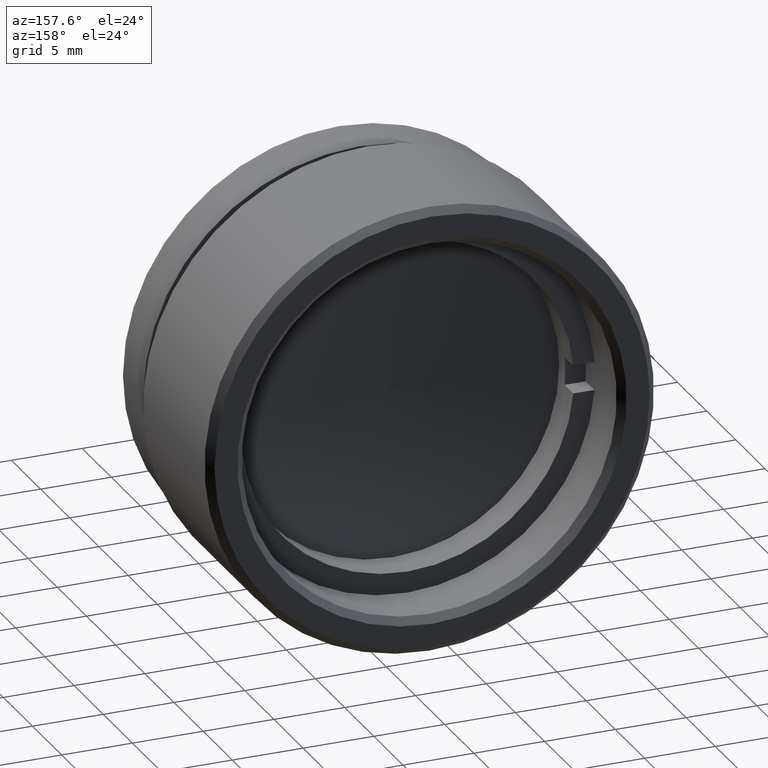
[diagram: clean part render]
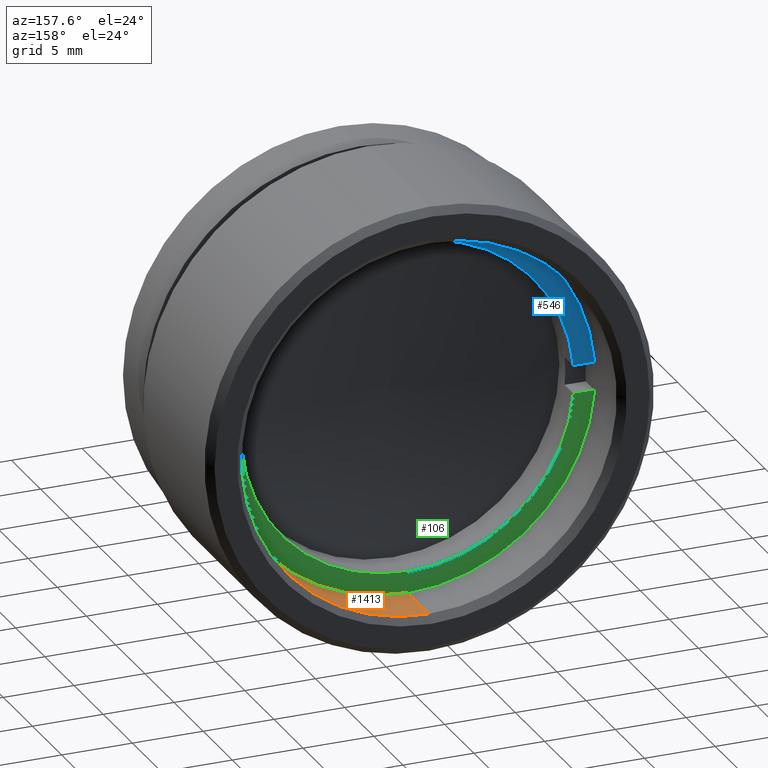
[diagram: same view with three faces highlighted in distinct colors, each labeled with its STEP entity id]
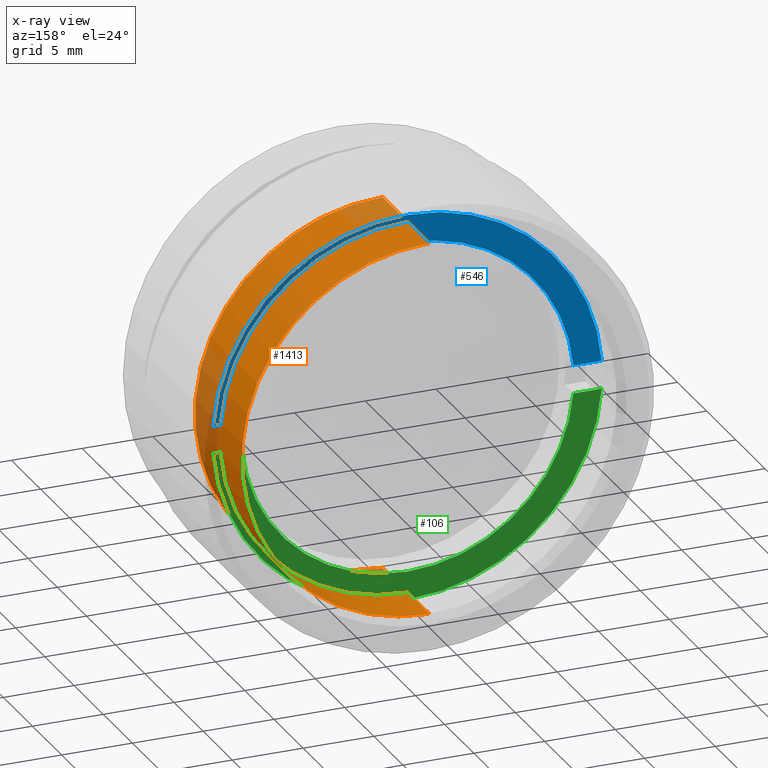
[diagram: x-ray of the same camera — body ghosted, the three highlighted faces saturated]
A machine part, auxiliary view with three faces highlighted in distinct colors.
The next image is the same camera in x-ray (body ghosted, the three faces saturated) — at least one of them is partly hidden behind the body in this view.
Their STEP definitions:

[orange] entity #1413 — the highlighted cylindrical surface (partial cylindrical patch) has radius 13.25 mm, axis along (0, -1, 0).
#100 = ORIENTED_EDGE ( 'NONE', *, *, #1053, .T. ) ;
#103 = EDGE_CURVE ( 'NONE', #1215, #112, #1181, .T. ) ;
#112 = VERTEX_POINT ( 'NONE', #798 ) ;
#142 = ORIENTED_EDGE ( 'NONE', *, *, #103, .F. ) ;
#342 = AXIS2_PLACEMENT_3D ( 'NONE', #1079, #598, #830 ) ;
#344 = DIRECTION ( 'NONE',  ( 0.000000000000000000, 0.000000000000000000, -1.000000000000000000 ) ) ;
#356 = CARTESIAN_POINT ( 'NONE',  ( -62.96855859389910393, 12.15316592187942035, 6.676470295292635804 ) ) ;
#432 = CARTESIAN_POINT ( 'NONE',  ( -62.96855859389910393, 20.15316592187942035, 33.17647029529263847 ) ) ;
#482 = ORIENTED_EDGE ( 'NONE', *, *, #577, .T. ) ;
#509 = CARTESIAN_POINT ( 'NONE',  ( -62.96855859389910393, 4.153165921879420353, 6.676470295292635804 ) ) ;
#542 = CARTESIAN_POINT ( 'NONE',  ( -62.96855859389910393, 20.15316592187942035, 6.676470295292635804 ) ) ;
#577 = EDGE_CURVE ( 'NONE', #1132, #1412, #864, .T. ) ;
#598 = DIRECTION ( 'NONE',  ( 0.000000000000000000, 1.000000000000000000, 0.000000000000000000 ) ) ;
#643 = AXIS2_PLACEMENT_3D ( 'NONE', #1289, #1186, #344 ) ;
#684 = EDGE_LOOP ( 'NONE', ( #142, #100, #482, #1262 ) ) ;
#710 = CYLINDRICAL_SURFACE ( 'NONE', #1448, 13.25000000000000000 ) ;
#723 = VECTOR ( 'NONE', #725, 1000.000000000000000 ) ;
#725 = DIRECTION ( 'NONE',  ( 0.000000000000000000, -1.000000000000000000, 0.000000000000000000 ) ) ;
#730 = DIRECTION ( 'NONE',  ( 0.000000000000000000, -1.000000000000000000, 0.000000000000000000 ) ) ;
#798 = CARTESIAN_POINT ( 'NONE',  ( -62.96855859389910393, 12.15316592187942035, 33.17647029529263847 ) ) ;
#828 = CARTESIAN_POINT ( 'NONE',  ( -62.96855859389910393, 4.153165921879420353, 19.92647029529263492 ) ) ;
#830 = DIRECTION ( 'NONE',  ( 0.000000000000000000, 0.000000000000000000, 1.000000000000000000 ) ) ;
#860 = VECTOR ( 'NONE', #730, 1000.000000000000000 ) ;
#864 = LINE ( 'NONE', #509, #860 ) ;
#909 = CIRCLE ( 'NONE', #342, 13.25000000000000178 ) ;
#935 = EDGE_CURVE ( 'NONE', #1412, #112, #1308, .T. ) ;
#1053 = EDGE_CURVE ( 'NONE', #1215, #1132, #909, .T. ) ;
#1069 = CARTESIAN_POINT ( 'NONE',  ( -62.96855859389910393, 4.153165921879420353, 33.17647029529263847 ) ) ;
#1079 = CARTESIAN_POINT ( 'NONE',  ( -62.96855859389910393, 20.15316592187942035, 19.92647029529263492 ) ) ;
#1132 = VERTEX_POINT ( 'NONE', #542 ) ;
#1181 = LINE ( 'NONE', #1069, #723 ) ;
#1186 = DIRECTION ( 'NONE',  ( 0.000000000000000000, -1.000000000000000000, 0.000000000000000000 ) ) ;
#1191 = DIRECTION ( 'NONE',  ( 0.000000000000000000, -1.000000000000000000, 0.000000000000000000 ) ) ;
#1215 = VERTEX_POINT ( 'NONE', #432 ) ;
#1262 = ORIENTED_EDGE ( 'NONE', *, *, #935, .T. ) ;
#1289 = CARTESIAN_POINT ( 'NONE',  ( -62.96855859389910393, 12.15316592187942035, 19.92647029529263492 ) ) ;
#1308 = CIRCLE ( 'NONE', #643, 13.25000000000000000 ) ;
#1326 = DIRECTION ( 'NONE',  ( 0.000000000000000000, 0.000000000000000000, -1.000000000000000000 ) ) ;
#1398 = FACE_OUTER_BOUND ( 'NONE', #684, .T. ) ;
#1412 = VERTEX_POINT ( 'NONE', #356 ) ;
#1413 = ADVANCED_FACE ( 'NONE', ( #1398 ), #710, .F. ) ;
#1448 = AXIS2_PLACEMENT_3D ( 'NONE', #828, #1191, #1326 ) ;

[blue] entity #546 — the highlighted planar face has unit normal (0, -1, 0).
#21 = CARTESIAN_POINT ( 'NONE',  ( -74.67592806786720416, 16.44655128965290203, 20.92647029529263492 ) ) ;
#95 = VERTEX_POINT ( 'NONE', #21 ) ;
#99 = EDGE_LOOP ( 'NONE', ( #518, #561, #1511, #476, #685, #104 ) ) ;
#104 = ORIENTED_EDGE ( 'NONE', *, *, #1012, .F. ) ;
#124 = CARTESIAN_POINT ( 'NONE',  ( -76.68214674580160306, 16.44655128965290558, 20.92647029529263492 ) ) ;
#197 = VERTEX_POINT ( 'NONE', #1464 ) ;
#212 = CARTESIAN_POINT ( 'NONE',  ( -51.26118911993101079, 16.44655128965290203, 20.92647029529263492 ) ) ;
#252 = EDGE_CURVE ( 'NONE', #1228, #1187, #607, .T. ) ;
#279 = LINE ( 'NONE', #1227, #519 ) ;
#286 = DIRECTION ( 'NONE',  ( 0.000000000000000000, 1.000000000000000000, 0.000000000000000000 ) ) ;
#310 = AXIS2_PLACEMENT_3D ( 'NONE', #776, #337, #591 ) ;
#332 = DIRECTION ( 'NONE',  ( 0.000000000000000000, 0.000000000000000000, 1.000000000000000000 ) ) ;
#337 = DIRECTION ( 'NONE',  ( 0.000000000000000000, 1.000000000000000000, 0.000000000000000000 ) ) ;
#345 = VERTEX_POINT ( 'NONE', #124 ) ;
#408 = DIRECTION ( 'NONE',  ( 0.000000000000000000, 0.000000000000000000, 1.000000000000000000 ) ) ;
#426 = DIRECTION ( 'NONE',  ( 0.000000000000000000, -1.000000000000000000, 0.000000000000000000 ) ) ;
#449 = FACE_OUTER_BOUND ( 'NONE', #99, .T. ) ;
#476 = ORIENTED_EDGE ( 'NONE', *, *, #252, .F. ) ;
#518 = ORIENTED_EDGE ( 'NONE', *, *, #1189, .T. ) ;
#519 = VECTOR ( 'NONE', #1082, 1000.000000000000000 ) ;
#525 = CARTESIAN_POINT ( 'NONE',  ( -89.82109886651370800, 16.44655128965290558, 20.92647029529263492 ) ) ;
#546 = ADVANCED_FACE ( 'NONE', ( #449 ), #1177, .F. ) ;
#561 = ORIENTED_EDGE ( 'NONE', *, *, #862, .T. ) ;
#566 = DIRECTION ( 'NONE',  ( 0.000000000000000000, 1.000000000000000000, 0.000000000000000000 ) ) ;
#573 = CARTESIAN_POINT ( 'NONE',  ( -62.96855859389910393, 16.44655128965290203, 31.67647029529263492 ) ) ;
#591 = DIRECTION ( 'NONE',  ( 0.000000000000000000, 0.000000000000000000, 1.000000000000000000 ) ) ;
#607 = CIRCLE ( 'NONE', #310, 11.75000000000000000 ) ;
#634 = CIRCLE ( 'NONE', #1320, 13.75000000000000178 ) ;
#652 = CARTESIAN_POINT ( 'NONE',  ( -62.96855859389910393, 16.44655128965290203, 19.92647029529263492 ) ) ;
#660 = EDGE_CURVE ( 'NONE', #1187, #197, #279, .T. ) ;
#680 = DIRECTION ( 'NONE',  ( 0.000000000000000000, 0.000000000000000000, -1.000000000000000000 ) ) ;
#685 = ORIENTED_EDGE ( 'NONE', *, *, #822, .F. ) ;
#759 = CIRCLE ( 'NONE', #1370, 13.75000000000000178 ) ;
#776 = CARTESIAN_POINT ( 'NONE',  ( -62.96855859389910393, 16.44655128965290203, 19.92647029529263492 ) ) ;
#782 = VERTEX_POINT ( 'NONE', #1247 ) ;
#822 = EDGE_CURVE ( 'NONE', #95, #1228, #1400, .T. ) ;
#862 = EDGE_CURVE ( 'NONE', #782, #197, #634, .T. ) ;
#936 = AXIS2_PLACEMENT_3D ( 'NONE', #652, #286, #408 ) ;
#1012 = EDGE_CURVE ( 'NONE', #345, #95, #1457, .T. ) ;
#1082 = DIRECTION ( 'NONE',  ( 1.000000000000000000, 0.000000000000000000, 0.000000000000000000 ) ) ;
#1142 = VECTOR ( 'NONE', #1224, 1000.000000000000000 ) ;
#1177 = PLANE ( 'NONE',  #1374 ) ;
#1187 = VERTEX_POINT ( 'NONE', #212 ) ;
#1189 = EDGE_CURVE ( 'NONE', #345, #782, #759, .T. ) ;
#1224 = DIRECTION ( 'NONE',  ( 1.000000000000000000, 0.000000000000000000, 0.000000000000000000 ) ) ;
#1227 = CARTESIAN_POINT ( 'NONE',  ( -89.82109886651370800, 16.44655128965290558, 20.92647029529263492 ) ) ;
#1228 = VERTEX_POINT ( 'NONE', #573 ) ;
#1247 = CARTESIAN_POINT ( 'NONE',  ( -62.96855859389910393, 16.44655128965290203, 33.67647029529263847 ) ) ;
#1320 = AXIS2_PLACEMENT_3D ( 'NONE', #1488, #1481, #1364 ) ;
#1364 = DIRECTION ( 'NONE',  ( 0.000000000000000000, 0.000000000000000000, 1.000000000000000000 ) ) ;
#1369 = CARTESIAN_POINT ( 'NONE',  ( -62.96855859389910393, 16.44655128965290203, 19.92647029529263492 ) ) ;
#1370 = AXIS2_PLACEMENT_3D ( 'NONE', #1369, #566, #332 ) ;
#1374 = AXIS2_PLACEMENT_3D ( 'NONE', #1407, #426, #680 ) ;
#1400 = CIRCLE ( 'NONE', #936, 11.75000000000000000 ) ;
#1407 = CARTESIAN_POINT ( 'NONE',  ( -51.21855859389911103, 16.44655128965290558, 19.92647029529263492 ) ) ;
#1457 = LINE ( 'NONE', #525, #1142 ) ;
#1464 = CARTESIAN_POINT ( 'NONE',  ( -49.25497044199664032, 16.44655128965290558, 20.92647029529263492 ) ) ;
#1481 = DIRECTION ( 'NONE',  ( 0.000000000000000000, 1.000000000000000000, 0.000000000000000000 ) ) ;
#1488 = CARTESIAN_POINT ( 'NONE',  ( -62.96855859389910393, 16.44655128965290203, 19.92647029529263492 ) ) ;
#1511 = ORIENTED_EDGE ( 'NONE', *, *, #660, .F. ) ;

[green] entity #106 — the highlighted planar face has unit normal (0, -1, 0).
#4 = LINE ( 'NONE', #490, #228 ) ;
#5 = CIRCLE ( 'NONE', #198, 13.75000000000000178 ) ;
#8 = DIRECTION ( 'NONE',  ( 0.000000000000000000, 1.000000000000000000, 0.000000000000000000 ) ) ;
#22 = DIRECTION ( 'NONE',  ( -1.000000000000000000, 0.000000000000000000, 0.000000000000000000 ) ) ;
#48 = DIRECTION ( 'NONE',  ( 0.000000000000000000, 1.000000000000000000, 0.000000000000000000 ) ) ;
#83 = ORIENTED_EDGE ( 'NONE', *, *, #803, .F. ) ;
#106 = ADVANCED_FACE ( 'NONE', ( #199 ), #225, .F. ) ;
#123 = AXIS2_PLACEMENT_3D ( 'NONE', #1260, #211, #218 ) ;
#137 = CARTESIAN_POINT ( 'NONE',  ( -62.96855859389910393, 16.44655128965290203, 19.92647029529263492 ) ) ;
#144 = EDGE_CURVE ( 'NONE', #924, #724, #164, .T. ) ;
#164 = CIRCLE ( 'NONE', #123, 13.75000000000000178 ) ;
#187 = DIRECTION ( 'NONE',  ( -1.000000000000000000, 0.000000000000000000, 0.000000000000000000 ) ) ;
#191 = CARTESIAN_POINT ( 'NONE',  ( -51.21855859389911103, 16.44655128965290558, 19.92647029529263492 ) ) ;
#195 = LINE ( 'NONE', #638, #533 ) ;
#198 = AXIS2_PLACEMENT_3D ( 'NONE', #137, #363, #835 ) ;
#199 = FACE_OUTER_BOUND ( 'NONE', #428, .T. ) ;
#211 = DIRECTION ( 'NONE',  ( 0.000000000000000000, 1.000000000000000000, 0.000000000000000000 ) ) ;
#218 = DIRECTION ( 'NONE',  ( 0.000000000000000000, 0.000000000000000000, 1.000000000000000000 ) ) ;
#225 = PLANE ( 'NONE',  #1147 ) ;
#228 = VECTOR ( 'NONE', #22, 1000.000000000000000 ) ;
#276 = VERTEX_POINT ( 'NONE', #343 ) ;
#321 = CARTESIAN_POINT ( 'NONE',  ( -62.96855859389910393, 16.44655128965290203, 6.176470295292635804 ) ) ;
#343 = CARTESIAN_POINT ( 'NONE',  ( -74.67592806786720416, 16.44655128965290203, 18.92647029529263492 ) ) ;
#363 = DIRECTION ( 'NONE',  ( 0.000000000000000000, 1.000000000000000000, 0.000000000000000000 ) ) ;
#395 = DIRECTION ( 'NONE',  ( 0.000000000000000000, 0.000000000000000000, 1.000000000000000000 ) ) ;
#416 = VERTEX_POINT ( 'NONE', #1054 ) ;
#428 = EDGE_LOOP ( 'NONE', ( #1222, #651, #458, #484, #1421, #83 ) ) ;
#458 = ORIENTED_EDGE ( 'NONE', *, *, #1291, .F. ) ;
#475 = DIRECTION ( 'NONE',  ( 0.000000000000000000, 0.000000000000000000, 1.000000000000000000 ) ) ;
#484 = ORIENTED_EDGE ( 'NONE', *, *, #614, .F. ) ;
#490 = CARTESIAN_POINT ( 'NONE',  ( -89.82109886651370800, 16.44655128965290558, 18.92647029529263492 ) ) ;
#533 = VECTOR ( 'NONE', #187, 1000.000000000000000 ) ;
#538 = VERTEX_POINT ( 'NONE', #677 ) ;
#575 = CARTESIAN_POINT ( 'NONE',  ( -49.25497044199664032, 16.44655128965290558, 18.92647029529263492 ) ) ;
#614 = EDGE_CURVE ( 'NONE', #1045, #276, #1408, .T. ) ;
#638 = CARTESIAN_POINT ( 'NONE',  ( -89.82109886651370800, 16.44655128965290558, 18.92647029529263492 ) ) ;
#651 = ORIENTED_EDGE ( 'NONE', *, *, #1301, .T. ) ;
#658 = DIRECTION ( 'NONE',  ( 0.000000000000000000, 0.000000000000000000, -1.000000000000000000 ) ) ;
#677 = CARTESIAN_POINT ( 'NONE',  ( -51.26118911993101079, 16.44655128965290203, 18.92647029529263492 ) ) ;
#724 = VERTEX_POINT ( 'NONE', #321 ) ;
#803 = EDGE_CURVE ( 'NONE', #924, #538, #195, .T. ) ;
#835 = DIRECTION ( 'NONE',  ( 0.000000000000000000, 0.000000000000000000, 1.000000000000000000 ) ) ;
#842 = CIRCLE ( 'NONE', #1297, 11.75000000000000000 ) ;
#899 = DIRECTION ( 'NONE',  ( 0.000000000000000000, -1.000000000000000000, 0.000000000000000000 ) ) ;
#924 = VERTEX_POINT ( 'NONE', #575 ) ;
#951 = EDGE_CURVE ( 'NONE', #538, #1045, #842, .T. ) ;
#1045 = VERTEX_POINT ( 'NONE', #1469 ) ;
#1054 = CARTESIAN_POINT ( 'NONE',  ( -76.68214674580160306, 16.44655128965290558, 18.92647029529263492 ) ) ;
#1088 = CARTESIAN_POINT ( 'NONE',  ( -62.96855859389910393, 16.44655128965290203, 19.92647029529263492 ) ) ;
#1095 = AXIS2_PLACEMENT_3D ( 'NONE', #1088, #48, #395 ) ;
#1147 = AXIS2_PLACEMENT_3D ( 'NONE', #191, #899, #658 ) ;
#1222 = ORIENTED_EDGE ( 'NONE', *, *, #144, .T. ) ;
#1260 = CARTESIAN_POINT ( 'NONE',  ( -62.96855859389910393, 16.44655128965290203, 19.92647029529263492 ) ) ;
#1291 = EDGE_CURVE ( 'NONE', #276, #416, #4, .T. ) ;
#1297 = AXIS2_PLACEMENT_3D ( 'NONE', #1386, #8, #475 ) ;
#1301 = EDGE_CURVE ( 'NONE', #724, #416, #5, .T. ) ;
#1386 = CARTESIAN_POINT ( 'NONE',  ( -62.96855859389910393, 16.44655128965290203, 19.92647029529263492 ) ) ;
#1408 = CIRCLE ( 'NONE', #1095, 11.75000000000000000 ) ;
#1421 = ORIENTED_EDGE ( 'NONE', *, *, #951, .F. ) ;
#1469 = CARTESIAN_POINT ( 'NONE',  ( -62.96855859389910393, 16.44655128965290203, 8.176470295292634916 ) ) ;